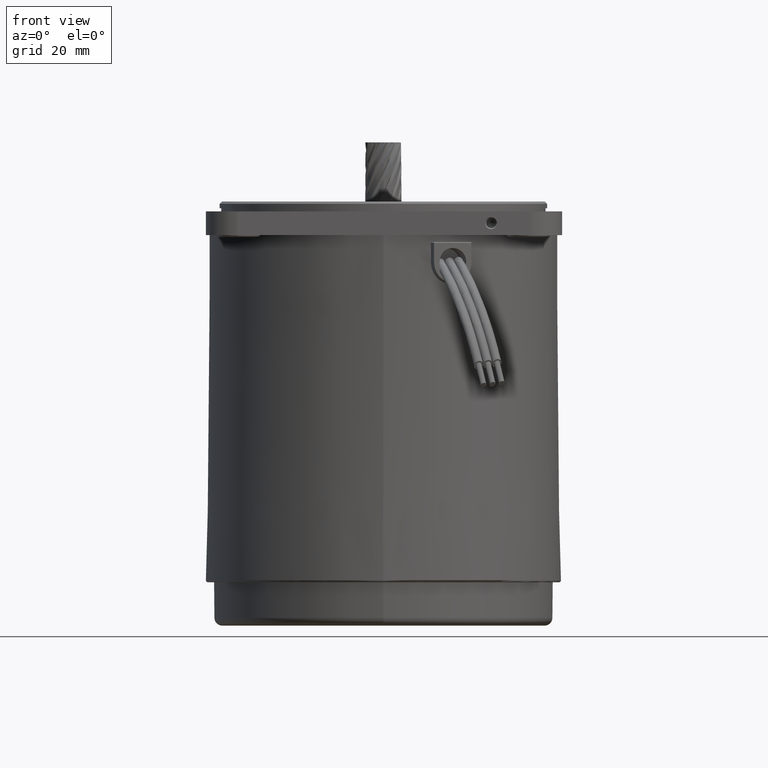
[diagram: clean part render]
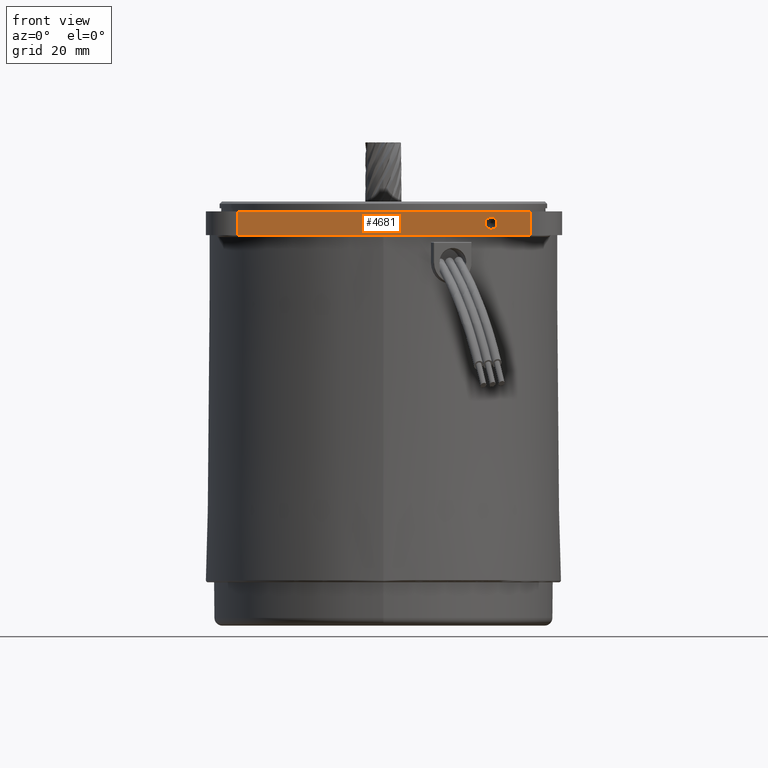
[diagram: same view with one face highlighted and labeled with its STEP entity id]
A machine part, front view. The second image highlights one B-rep face of the part: STEP entity #4681.
In plain terms, the highlighted planar face has unit normal (-0, 1, -0).
Its self-contained STEP definition (entity closure, byte-faithful):
#4645 = ORIENTED_EDGE ( 'NONE', *, *, #17694, .T. ) ;
#4681 = ADVANCED_FACE ( 'NONE', ( #11226, #11151 ), #11245, .F. ) ;
#4693 = ORIENTED_EDGE ( 'NONE', *, *, #17755, .F. ) ;
#11134 = AXIS2_PLACEMENT_3D ( 'NONE', #11213, #11211, #11210 ) ;
#11151 = FACE_OUTER_BOUND ( 'NONE', #17739, .T. ) ;
#11160 = CARTESIAN_POINT ( 'NONE',  ( 103.5250000000000100, 27.29999999999999400, -45.29999999999998300 ) ) ;
#11169 = CARTESIAN_POINT ( 'NONE',  ( 100.4750000000000100, 27.29999999999999400, -45.29999999999998300 ) ) ;
#11210 = DIRECTION ( 'NONE',  ( 1.000000000000000000, 0.0000000000000000000, -0.0000000000000000000 ) ) ;
#11211 = DIRECTION ( 'NONE',  ( 0.0000000000000000000, 0.0000000000000000000, 1.000000000000000000 ) ) ;
#11213 = CARTESIAN_POINT ( 'NONE',  ( 105.0000000000000100, -37.00000000000000000, -45.29999999999998300 ) ) ;
#11226 = FACE_BOUND ( 'NONE', #17741, .T. ) ;
#11245 = PLANE ( 'NONE',  #11134 ) ;
#11396 = CIRCLE ( 'NONE', #11497, 1.524999999999998600 ) ;
#11491 = DIRECTION ( 'NONE',  ( -1.000000000000000000, 0.0000000000000000000, 0.0000000000000000000 ) ) ;
#11492 = DIRECTION ( 'NONE',  ( -0.0000000000000000000, -0.0000000000000000000, -1.000000000000000000 ) ) ;
#11493 = CARTESIAN_POINT ( 'NONE',  ( 102.0000000000000100, 27.29999999999999400, -45.29999999999998300 ) ) ;
#11497 = AXIS2_PLACEMENT_3D ( 'NONE', #11493, #11492, #11491 ) ;
#12851 = CARTESIAN_POINT ( 'NONE',  ( 99.00000000000000000, 37.29999999999998300, -45.29999999999998300 ) ) ;
#13016 = CARTESIAN_POINT ( 'NONE',  ( 99.00000000000000000, -37.00000000000000000, -45.29999999999998300 ) ) ;
#13040 = CARTESIAN_POINT ( 'NONE',  ( 99.00000000000000000, -37.00000000000000000, -45.29999999999998300 ) ) ;
#13041 = LINE ( 'NONE', #13040, #13207 ) ;
#13206 = DIRECTION ( 'NONE',  ( 0.0000000000000000000, 1.000000000000000000, 0.0000000000000000000 ) ) ;
#13207 = VECTOR ( 'NONE', #13206, 1000.000000000000000 ) ;
#13619 = DIRECTION ( 'NONE',  ( -1.000000000000000000, -0.0000000000000000000, -0.0000000000000000000 ) ) ;
#13620 = VECTOR ( 'NONE', #13619, 1000.000000000000000 ) ;
#13621 = CARTESIAN_POINT ( 'NONE',  ( 105.0000000000000100, -37.00000000000000000, -45.29999999999998300 ) ) ;
#13622 = LINE ( 'NONE', #13621, #13620 ) ;
#13627 = CARTESIAN_POINT ( 'NONE',  ( 102.0000000000000100, 27.29999999999999400, -45.29999999999998300 ) ) ;
#13797 = DIRECTION ( 'NONE',  ( -1.000000000000000000, 0.0000000000000000000, 0.0000000000000000000 ) ) ;
#13798 = DIRECTION ( 'NONE',  ( -0.0000000000000000000, -0.0000000000000000000, -1.000000000000000000 ) ) ;
#13799 = AXIS2_PLACEMENT_3D ( 'NONE', #13627, #13798, #13797 ) ;
#13814 = CIRCLE ( 'NONE', #13799, 1.524999999999998600 ) ;
#13953 = CARTESIAN_POINT ( 'NONE',  ( 105.0000000000000100, -37.00000000000000000, -45.29999999999998300 ) ) ;
#13954 = CARTESIAN_POINT ( 'NONE',  ( 105.0000000000000100, 37.29999999999998300, -45.29999999999998300 ) ) ;
#13985 = DIRECTION ( 'NONE',  ( 0.0000000000000000000, 1.000000000000000000, 0.0000000000000000000 ) ) ;
#13986 = CARTESIAN_POINT ( 'NONE',  ( 105.0000000000000100, -37.00000000000000000, -45.29999999999998300 ) ) ;
#13987 = LINE ( 'NONE', #13986, #14156 ) ;
#14150 = DIRECTION ( 'NONE',  ( -1.000000000000000000, -0.0000000000000000000, -0.0000000000000000000 ) ) ;
#14151 = VECTOR ( 'NONE', #14150, 1000.000000000000000 ) ;
#14152 = CARTESIAN_POINT ( 'NONE',  ( 105.0000000000000100, 37.29999999999998300, -45.29999999999998300 ) ) ;
#14153 = LINE ( 'NONE', #14152, #14151 ) ;
#14156 = VECTOR ( 'NONE', #13985, 1000.000000000000000 ) ;
#17108 = ORIENTED_EDGE ( 'NONE', *, *, #17753, .F. ) ;
#17109 = VERTEX_POINT ( 'NONE', #11169 ) ;
#17124 = VERTEX_POINT ( 'NONE', #11160 ) ;
#17173 = EDGE_CURVE ( 'NONE', #17124, #17109, #11396, .T. ) ;
#17635 = VERTEX_POINT ( 'NONE', #12851 ) ;
#17657 = VERTEX_POINT ( 'NONE', #13016 ) ;
#17670 = EDGE_CURVE ( 'NONE', #17657, #17635, #13041, .T. ) ;
#17694 = EDGE_CURVE ( 'NONE', #17745, #17657, #13622, .T. ) ;
#17722 = EDGE_CURVE ( 'NONE', #17109, #17124, #13814, .T. ) ;
#17738 = ORIENTED_EDGE ( 'NONE', *, *, #17722, .F. ) ;
#17739 = EDGE_LOOP ( 'NONE', ( #17749, #4693, #17108, #4645 ) ) ;
#17741 = EDGE_LOOP ( 'NONE', ( #17738, #17754 ) ) ;
#17745 = VERTEX_POINT ( 'NONE', #13953 ) ;
#17749 = ORIENTED_EDGE ( 'NONE', *, *, #17670, .T. ) ;
#17750 = VERTEX_POINT ( 'NONE', #13954 ) ;
#17753 = EDGE_CURVE ( 'NONE', #17745, #17750, #13987, .T. ) ;
#17754 = ORIENTED_EDGE ( 'NONE', *, *, #17173, .F. ) ;
#17755 = EDGE_CURVE ( 'NONE', #17750, #17635, #14153, .T. ) ;